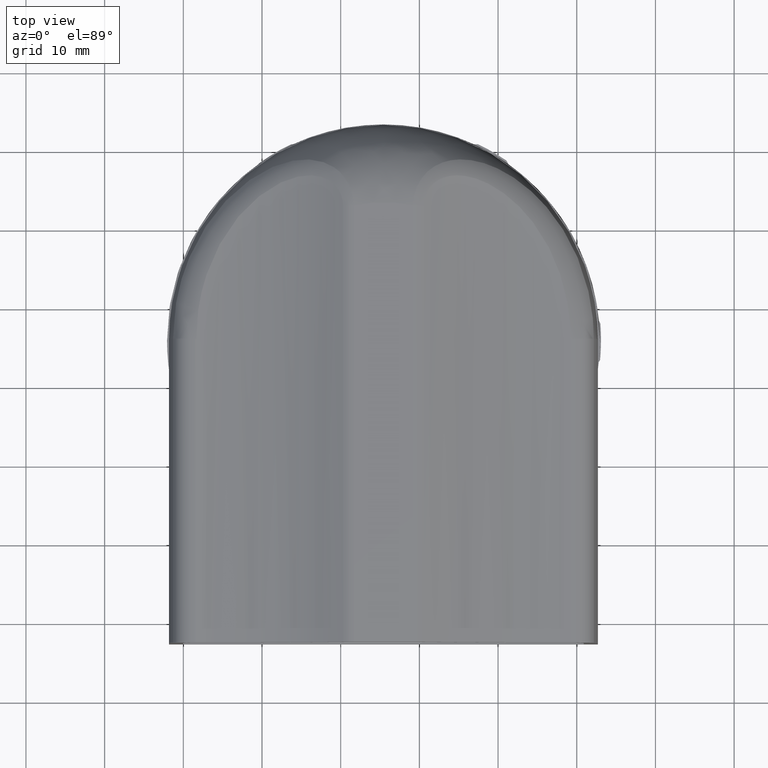
[diagram: clean part render]
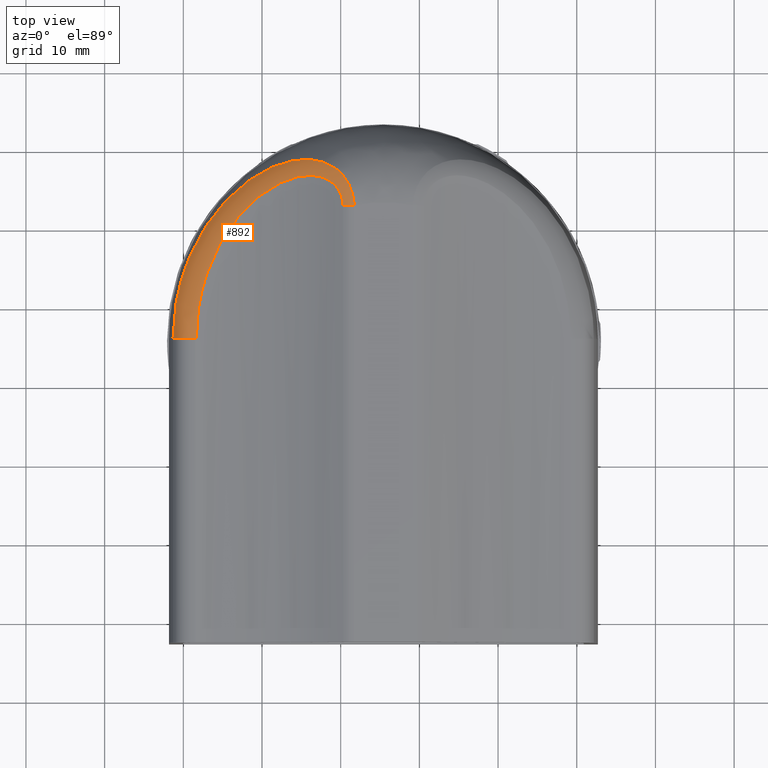
[diagram: same view with one face highlighted and labeled with its STEP entity id]
A machine part, top view. The second image highlights one B-rep face of the part: STEP entity #892.
In plain terms, the highlighted face is a freeform B-spline surface patch.
Its self-contained STEP definition (entity closure, byte-faithful):
#593 = VERTEX_POINT ( 'NONE', #2868 ) ;
#691 = VERTEX_POINT ( 'NONE', #3015 ) ;
#705 = VERTEX_POINT ( 'NONE', #2986 ) ;
#721 = VERTEX_POINT ( 'NONE', #3010 ) ;
#725 = VERTEX_POINT ( 'NONE', #3012 ) ;
#731 = VERTEX_POINT ( 'NONE', #3027 ) ;
#767 = VERTEX_POINT ( 'NONE', #3050 ) ;
#787 = VERTEX_POINT ( 'NONE', #3043 ) ;
#892 = ADVANCED_FACE ( 'NONE', ( #3349 ), #3810, .T. ) ;
#924 = EDGE_CURVE ( 'NONE', #705, #787, #13086, .T. ) ;
#1370 = EDGE_CURVE ( 'NONE', #593, #721, #13033, .T. ) ;
#1400 = EDGE_CURVE ( 'NONE', #767, #593, #13002, .T. ) ;
#1457 = EDGE_CURVE ( 'NONE', #725, #691, #16097, .T. ) ;
#1462 = EDGE_CURVE ( 'NONE', #721, #691, #13045, .T. ) ;
#1472 = EDGE_CURVE ( 'NONE', #705, #731, #16108, .T. ) ;
#1597 = EDGE_CURVE ( 'NONE', #787, #725, #13222, .T. ) ;
#1634 = EDGE_CURVE ( 'NONE', #731, #767, #15459, .T. ) ;
#2868 = CARTESIAN_POINT ( 'NONE',  ( -29.23953529182410400, 16.15123547839498400, 28.12183438687709000 ) ) ;
#2986 = CARTESIAN_POINT ( 'NONE',  ( -28.35295904820535300, 5.810299003322281700, 30.20632979842735500 ) ) ;
#3010 = CARTESIAN_POINT ( 'NONE',  ( -29.22727264966025700, 16.18029899237197400, 28.12201132710667300 ) ) ;
#3012 = CARTESIAN_POINT ( 'NONE',  ( -9.727194611496791800, 22.65582705142065500, 34.62921381726673100 ) ) ;
#3015 = CARTESIAN_POINT ( 'NONE',  ( -8.282468096514207900, 22.65582705142065800, 35.00000000000000000 ) ) ;
#3027 = CARTESIAN_POINT ( 'NONE',  ( -28.46143528489474800, 5.810299003322280800, 30.20829162220716000 ) ) ;
#3043 = CARTESIAN_POINT ( 'NONE',  ( -27.05212935873010200, 13.91955743176911900, 30.18280376786649900 ) ) ;
#3050 = CARTESIAN_POINT ( 'NONE',  ( -31.30824170542127800, 5.810299003322281700, 28.15470231743880100 ) ) ;
#3323 = CARTESIAN_POINT ( 'NONE',  ( -29.39337706568769800, 13.77714085523745300, 30.19839028044501100 ) ) ;
#3327 = CARTESIAN_POINT ( 'NONE',  ( -28.35295904820534600, 5.810299003322281700, 30.20632979842735500 ) ) ;
#3329 = CARTESIAN_POINT ( 'NONE',  ( -31.30824170542127800, 5.810299003322281700, 28.15470231743879700 ) ) ;
#3331 = CARTESIAN_POINT ( 'NONE',  ( -30.59916644373205200, 7.442756039070599300, 30.28760298797578800 ) ) ;
#3334 = CARTESIAN_POINT ( 'NONE',  ( -30.01992600630856600, 11.43114534023539300, 30.23957486358580500 ) ) ;
#3336 = CARTESIAN_POINT ( 'NONE',  ( -27.41159285443916700, 12.75342647384064800, 30.18447605157441400 ) ) ;
#3337 = CARTESIAN_POINT ( 'NONE',  ( -30.59916644411810400, 5.810299003322281700, 30.28760298803019400 ) ) ;
#3338 = CARTESIAN_POINT ( 'NONE',  ( -30.04486649187033400, 13.98119868934333200, 28.11945171576723400 ) ) ;
#3340 = CARTESIAN_POINT ( 'NONE',  ( -27.85103734155215000, 10.95715762637992300, 30.19145776357734700 ) ) ;
#3341 = CARTESIAN_POINT ( 'NONE',  ( -30.70128860734118700, 11.57075258302899600, 28.13168486891889200 ) ) ;
#3342 = CARTESIAN_POINT ( 'NONE',  ( -31.15552815425063900, 9.130728497097177200, 28.14661697231155900 ) ) ;
#3343 = CARTESIAN_POINT ( 'NONE',  ( -31.30824170539294500, 7.481801290422351000, 28.15470231752401300 ) ) ;
#3344 = CARTESIAN_POINT ( 'NONE',  ( -29.13957338254359200, 14.54285902856159800, 30.18474467702575100 ) ) ;
#3345 = CARTESIAN_POINT ( 'NONE',  ( -28.22652282134690100, 8.777192894941260100, 30.20110569504322100 ) ) ;
#3347 = CARTESIAN_POINT ( 'NONE',  ( -26.97253817918989700, 14.16306365037054400, 30.18267716741660000 ) ) ;
#3349 = FACE_OUTER_BOUND ( 'NONE', #13857, .T. ) ;
#3350 = CARTESIAN_POINT ( 'NONE',  ( -27.58162620142385900, 18.19573494287270800, 30.12976452216454200 ) ) ;
#3351 = CARTESIAN_POINT ( 'NONE',  ( -24.82261894295285000, 18.75197696650392800, 30.25148610940280100 ) ) ;
#3352 = CARTESIAN_POINT ( 'NONE',  ( -26.51331168260517800, 19.87400658318624000, 30.14637992788754100 ) ) ;
#3353 = CARTESIAN_POINT ( 'NONE',  ( -27.02349902421475400, 20.29123892027097800, 28.22459074098078300 ) ) ;
#3354 = CARTESIAN_POINT ( 'NONE',  ( -24.63178862589970900, 19.05896549456584700, 30.26376029437030400 ) ) ;
#3358 = CARTESIAN_POINT ( 'NONE',  ( -30.51205024930710200, 12.37851058001246500, 28.12640647028898000 ) ) ;
#3359 = CARTESIAN_POINT ( 'NONE',  ( -29.51197573634992800, 13.38858144515611100, 30.20543012557919500 ) ) ;
#3360 = CARTESIAN_POINT ( 'NONE',  ( -27.30899826457383000, 13.11059573242833500, 30.18355367827544500 ) ) ;
#3361 = CARTESIAN_POINT ( 'NONE',  ( -29.00418849619542500, 14.92091131294049200, 30.17812263846843700 ) ) ;
#3362 = CARTESIAN_POINT ( 'NONE',  ( -26.35097148399084700, 15.88340135282136400, 30.18620017484755300 ) ) ;
#3363 = CARTESIAN_POINT ( 'NONE',  ( -28.88290025559350500, 17.08457369658605200, 28.12354769896502700 ) ) ;
#3364 = CARTESIAN_POINT ( 'NONE',  ( -28.13906798291206000, 18.55297370023641100, 28.14381605303209000 ) ) ;
#3365 = CARTESIAN_POINT ( 'NONE',  ( -28.35295904785730800, 7.303856281307517400, 30.20632979841476000 ) ) ;
#3368 = CARTESIAN_POINT ( 'NONE',  ( -30.45402525409692300, 9.049593634966690600, 30.27361510757563700 ) ) ;
#3369 = CARTESIAN_POINT ( 'NONE',  ( -27.08958185434250200, 13.81495584521526300, 30.18265612863836000 ) ) ;
#3371 = CARTESIAN_POINT ( 'NONE',  ( -30.16917494382961000, 13.58140416227893400, 28.12087927310164700 ) ) ;
#3373 = CARTESIAN_POINT ( 'NONE',  ( -29.83950688652368300, 12.21747921859585200, 30.22622289487442200 ) ) ;
#3374 = CARTESIAN_POINT ( 'NONE',  ( -29.77889723415620100, 14.76959098856618300, 28.11806257830930300 ) ) ;
#3377 = CARTESIAN_POINT ( 'NONE',  ( -29.63696779708440900, 15.15921519018422400, 28.11809513987660800 ) ) ;
#3380 = CARTESIAN_POINT ( 'NONE',  ( -28.28733020004366600, 16.78094759717409100, 30.14754664370265800 ) ) ;
#3381 = CARTESIAN_POINT ( 'NONE',  ( -25.73867710604483600, 17.19574636795099900, 30.19929596523963900 ) ) ;
#3382 = CARTESIAN_POINT ( 'NONE',  ( -27.69466979187214800, 11.67878785128900200, 30.18804728463157300 ) ) ;
#3383 = CARTESIAN_POINT ( 'NONE',  ( -13.71796803144591500, 28.52193853196524400, 31.91142757313665600 ) ) ;
#3384 = CARTESIAN_POINT ( 'NONE',  ( -24.23432917599670900, 19.66409991809132400, 30.29277289697216700 ) ) ;
#3385 = CARTESIAN_POINT ( 'NONE',  ( -12.90106127321599400, 27.48452649035967000, 33.08027415076824000 ) ) ;
#3386 = CARTESIAN_POINT ( 'NONE',  ( -22.93632587691272900, 24.94023124620969900, 28.78463009558197100 ) ) ;
#3387 = CARTESIAN_POINT ( 'NONE',  ( -15.48187390969171800, 27.64058972798465400, 32.09139581369854700 ) ) ;
#3388 = CARTESIAN_POINT ( 'NONE',  ( -13.03961305878188500, 26.43319152780438200, 33.02221426786119500 ) ) ;
#3389 = CARTESIAN_POINT ( 'NONE',  ( -20.41794540129215800, 23.85758383705114500, 30.79571043383726800 ) ) ;
#3390 = CARTESIAN_POINT ( 'NONE',  ( -14.32230080690440100, 26.49906792966098800, 32.50855033247420800 ) ) ;
#3391 = CARTESIAN_POINT ( 'NONE',  ( -11.83816098491847900, 27.10163714734875400, 33.55466546962750100 ) ) ;
#3392 = CARTESIAN_POINT ( 'NONE',  ( -17.32448108277023700, 27.28286343513995500, 31.51241977604439300 ) ) ;
#3393 = CARTESIAN_POINT ( 'NONE',  ( -26.79099248778392800, 20.63396649322332300, 28.24358749694341200 ) ) ;
#3394 = CARTESIAN_POINT ( 'NONE',  ( -11.38039849758933300, 27.84863476665003600, 33.14426602469510600 ) ) ;
#3395 = CARTESIAN_POINT ( 'NONE',  ( -23.55147206288970800, 24.39515555772875300, 28.66955035499285700 ) ) ;
#3396 = CARTESIAN_POINT ( 'NONE',  ( -18.74176894948425300, 26.76200893849296800, 31.14219638752515000 ) ) ;
#3397 = CARTESIAN_POINT ( 'NONE',  ( -11.53111125738790400, 25.90144723387314900, 33.70160082282878000 ) ) ;
#3398 = CARTESIAN_POINT ( 'NONE',  ( -11.76239300381993400, 28.02880630292774100, 32.92941687076066200 ) ) ;
#3399 = CARTESIAN_POINT ( 'NONE',  ( -11.17312750744941500, 26.71717223159170700, 33.87231803453175200 ) ) ;
#3400 = CARTESIAN_POINT ( 'NONE',  ( -15.28683945367572900, 26.38148080896549900, 32.15936101675485800 ) ) ;
#3401 = CARTESIAN_POINT ( 'NONE',  ( -12.92337298186463600, 28.39807859070773000, 32.30892207585873900 ) ) ;
#3402 = CARTESIAN_POINT ( 'NONE',  ( -17.28772262461648900, 28.13928546641834700, 30.37972753138577500 ) ) ;
#3403 = CARTESIAN_POINT ( 'NONE',  ( -24.32500544901657200, 22.68027160746668300, 30.25482258445543600 ) ) ;
#3404 = CARTESIAN_POINT ( 'NONE',  ( -16.49921738421914000, 28.34966229909598200, 30.67987067899550300 ) ) ;
#3405 = CARTESIAN_POINT ( 'NONE',  ( -19.42732777019043100, 26.43669707771626800, 30.98596107635669800 ) ) ;
#3406 = CARTESIAN_POINT ( 'NONE',  ( -22.93389974377384300, 21.39311554226034300, 30.41605541456488700 ) ) ;
#3407 = CARTESIAN_POINT ( 'NONE',  ( -16.24473599324286600, 26.16299241478996200, 31.83789168412684500 ) ) ;
#3408 = CARTESIAN_POINT ( 'NONE',  ( -15.31510720162093300, 28.51499805532643400, 31.17740877272997200 ) ) ;
#3409 = CARTESIAN_POINT ( 'NONE',  ( -13.35518632741572800, 26.47567331192403700, 32.89045443839536600 ) ) ;
#3410 = CARTESIAN_POINT ( 'NONE',  ( -25.27126616628063600, 22.61761172205936200, 28.40417993733138900 ) ) ;
#3411 = CARTESIAN_POINT ( 'NONE',  ( -12.53207102009498700, 28.30231164112188900, 32.51284676467654600 ) ) ;
#3412 = CARTESIAN_POINT ( 'NONE',  ( -21.40918121842214800, 25.24139738059001200, 30.60865000955491400 ) ) ;
#3413 = CARTESIAN_POINT ( 'NONE',  ( -20.76057143215319600, 25.67834725495140100, 30.71882861330693600 ) ) ;
#3414 = CARTESIAN_POINT ( 'NONE',  ( -12.41943898594803700, 26.28686351645429300, 33.29136856024953800 ) ) ;
#3415 = CARTESIAN_POINT ( 'NONE',  ( -18.80134014735208900, 27.57969082913627500, 29.85626843750595000 ) ) ;
#3416 = CARTESIAN_POINT ( 'NONE',  ( -18.11114053186714700, 25.38182881315709900, 31.30574577010438700 ) ) ;
#3417 = CARTESIAN_POINT ( 'NONE',  ( -12.11191789948362500, 26.18148258825010500, 33.43018690592795400 ) ) ;
#3418 = CARTESIAN_POINT ( 'NONE',  ( -14.37302534543599300, 27.68394949200300900, 32.48886028250031900 ) ) ;
#3419 = CARTESIAN_POINT ( 'NONE',  ( -25.59069032951809700, 21.16702023093487400, 30.17744157422235700 ) ) ;
#3420 = CARTESIAN_POINT ( 'NONE',  ( -24.02702491774480400, 19.96314402934457300, 30.30957468574954600 ) ) ;
#3421 = CARTESIAN_POINT ( 'NONE',  ( -19.85718581624183800, 24.28761448590086000, 30.90468444905274800 ) ) ;
#3422 = CARTESIAN_POINT ( 'NONE',  ( -18.70479975253631700, 25.04833796568971800, 31.15963246881503300 ) ) ;
#3423 = CARTESIAN_POINT ( 'NONE',  ( -14.91867720372991400, 28.54565394212199400, 31.35158867042006700 ) ) ;
#3424 = CARTESIAN_POINT ( 'NONE',  ( -24.71897455896680300, 23.23389393858084200, 28.47929465727948900 ) ) ;
#3425 = CARTESIAN_POINT ( 'NONE',  ( -13.99640406239791300, 26.50886994603814300, 32.63362527478177100 ) ) ;
#3426 = CARTESIAN_POINT ( 'NONE',  ( -13.99874569714586100, 27.66422210993474800, 32.63217103227933800 ) ) ;
#3427 = CARTESIAN_POINT ( 'NONE',  ( -13.26297537450887600, 27.56402384659218200, 32.92790083672689100 ) ) ;
#3428 = CARTESIAN_POINT ( 'NONE',  ( -26.30646027488285200, 21.30908529242952600, 28.28849030294004400 ) ) ;
#3429 = CARTESIAN_POINT ( 'NONE',  ( -16.58846513487111100, 27.48024668028753600, 31.72761367538790000 ) ) ;
#3430 = CARTESIAN_POINT ( 'NONE',  ( -24.84875828145058900, 22.09487060581643500, 30.21699207264332500 ) ) ;
#3431 = CARTESIAN_POINT ( 'NONE',  ( -12.19045729454496700, 27.25417326858395500, 33.39280420753437500 ) ) ;
#3432 = CARTESIAN_POINT ( 'NONE',  ( -22.63645973817654400, 24.29320369617263600, 30.43029681150017000 ) ) ;
#3433 = CARTESIAN_POINT ( 'NONE',  ( -25.83107001544776400, 20.84855160895416400, 30.16717214374855500 ) ) ;
#3434 = CARTESIAN_POINT ( 'NONE',  ( -21.63754758523646900, 25.94994317167118000, 29.06688673892943700 ) ) ;
#3435 = CARTESIAN_POINT ( 'NONE',  ( -19.53221369437773800, 27.23026539664997600, 29.63012887950482000 ) ) ;
#3436 = CARTESIAN_POINT ( 'NONE',  ( -15.11323513779122700, 27.67210798439313300, 32.21898732857218300 ) ) ;
#3437 = CARTESIAN_POINT ( 'NONE',  ( -26.05361050295995900, 21.64247682890392400, 28.31449443143973000 ) ) ;
#3438 = CARTESIAN_POINT ( 'NONE',  ( -23.38597326123116100, 20.83866247529818900, 30.36752228823666400 ) ) ;
#3439 = CARTESIAN_POINT ( 'NONE',  ( -21.97944173641458900, 22.44160741233646000, 30.53898343329101200 ) ) ;
#3440 = CARTESIAN_POINT ( 'NONE',  ( -23.21808728227367500, 23.77943919696106100, 30.36170807091841100 ) ) ;
#3441 = CARTESIAN_POINT ( 'NONE',  ( -21.47710876049269800, 22.93571013728743000, 30.61333876056459500 ) ) ;
#3442 = CARTESIAN_POINT ( 'NONE',  ( -26.29207398512119900, 20.20247870913441800, 30.15165172349297200 ) ) ;
#3443 = CARTESIAN_POINT ( 'NONE',  ( -16.88343250106406800, 25.93889781776377400, 31.64396318020172000 ) ) ;
#3444 = CARTESIAN_POINT ( 'NONE',  ( -14.12156241065095100, 28.54937359541861900, 31.71784908380385900 ) ) ;
#3445 = CARTESIAN_POINT ( 'NONE',  ( -20.94907614155838300, 26.41699189476258200, 29.23554582344543800 ) ) ;
#3446 = CARTESIAN_POINT ( 'NONE',  ( -14.96634387094750300, 26.43529227785254000, 32.27190214014555600 ) ) ;
#3448 = CARTESIAN_POINT ( 'NONE',  ( -10.27126083617396400, 25.92257349317643600, 34.33020028649694000 ) ) ;
#3451 = CARTESIAN_POINT ( 'NONE',  ( -8.418264402466878200, 23.71958936061236800, 34.94641565771174600 ) ) ;
#3453 = CARTESIAN_POINT ( 'NONE',  ( -10.22923582056749400, 24.59737012370281700, 34.35832100891844500 ) ) ;
#3454 = CARTESIAN_POINT ( 'NONE',  ( -10.31489884869202100, 27.12532971823032600, 33.77044735636327700 ) ) ;
#3455 = CARTESIAN_POINT ( 'NONE',  ( -9.324087991451596800, 24.23439266949380100, 34.84641977292488200 ) ) ;
#3457 = CARTESIAN_POINT ( 'NONE',  ( -9.739542200454364400, 23.03385566249695400, 34.62241879636384600 ) ) ;
#3458 = CARTESIAN_POINT ( 'NONE',  ( -10.51763603155096600, 25.03914048488171300, 34.20686338282931900 ) ) ;
#3459 = CARTESIAN_POINT ( 'NONE',  ( -10.65756661270049000, 27.39651498738286200, 33.56433335149299800 ) ) ;
#3460 = CARTESIAN_POINT ( 'NONE',  ( -10.74457166164966000, 25.29215649286807700, 34.08990584007433700 ) ) ;
#3461 = CARTESIAN_POINT ( 'NONE',  ( -9.675508609248176100, 25.04590790181557100, 34.65119116071522100 ) ) ;
#3462 = CARTESIAN_POINT ( 'NONE',  ( -11.25630492815244900, 25.72746860808585700, 33.83477521473631800 ) ) ;
#3463 = CARTESIAN_POINT ( 'NONE',  ( -10.85824064950164200, 26.48622604483920600, 34.02889448084025000 ) ) ;
#3464 = CARTESIAN_POINT ( 'NONE',  ( -9.200187923655274600, 23.79973488330374900, 34.91629257097400800 ) ) ;
#3465 = CARTESIAN_POINT ( 'NONE',  ( -10.01003018604095600, 25.60065701949238800, 34.46928655302975400 ) ) ;
#3467 = CARTESIAN_POINT ( 'NONE',  ( -9.398940626318864800, 24.44413337825643500, 34.80439501832947300 ) ) ;
#3468 = CARTESIAN_POINT ( 'NONE',  ( -9.829207930029642900, 23.59120931270130600, 34.57332018861328700 ) ) ;
#3473 = CARTESIAN_POINT ( 'NONE',  ( -8.621534179728637800, 24.49083084065653900, 34.82814599747126000 ) ) ;
#3475 = CARTESIAN_POINT ( 'NONE',  ( -9.930724915285644300, 23.94401557610331800, 34.51817550256392800 ) ) ;
#3476 = CARTESIAN_POINT ( 'NONE',  ( -9.673375257684544000, 26.46454947422836700, 34.16531303608397300 ) ) ;
#3483 = CARTESIAN_POINT ( 'NONE',  ( -8.706792822886717100, 24.73563363362527300, 34.77563181110589600 ) ) ;
#3484 = CARTESIAN_POINT ( 'NONE',  ( -8.903826925887340600, 25.20866819953653600, 34.65232795878215200 ) ) ;
#3485 = CARTESIAN_POINT ( 'NONE',  ( -9.727194611496790000, 22.65582705142065800, 34.62921381726672400 ) ) ;
#3486 = CARTESIAN_POINT ( 'NONE',  ( -9.387092377196303500, 26.08757628699108700, 34.34632822140313400 ) ) ;
#3487 = CARTESIAN_POINT ( 'NONE',  ( -9.016858172583184200, 25.43894042092253800, 34.58073919668908800 ) ) ;
#3488 = CARTESIAN_POINT ( 'NONE',  ( -10.14222836692289500, 24.43956857928063500, 34.40457594389071300 ) ) ;
#3489 = CARTESIAN_POINT ( 'NONE',  ( -9.081276758243927100, 23.11667870094584000, 34.98378338619197300 ) ) ;
#3491 = CARTESIAN_POINT ( 'NONE',  ( -8.299579803523593900, 22.92336915913571400, 35.00000000000000000 ) ) ;
#3492 = CARTESIAN_POINT ( 'NONE',  ( -8.477399898626673600, 23.98401721814516200, 34.91349343052761600 ) ) ;
#3495 = CARTESIAN_POINT ( 'NONE',  ( -9.052412121673329500, 22.65582705142065800, 35.00000000000000000 ) ) ;
#3496 = CARTESIAN_POINT ( 'NONE',  ( -9.060398505306585200, 22.88694350224939500, 34.99561156257443200 ) ) ;
#3497 = CARTESIAN_POINT ( 'NONE',  ( -8.329632418224578700, 23.18973874025743200, 34.98948334524472900 ) ) ;
#3500 = CARTESIAN_POINT ( 'NONE',  ( -9.993466145897191000, 24.11358323183532400, 34.48424503374879900 ) ) ;
#3501 = CARTESIAN_POINT ( 'NONE',  ( -9.727194610454130700, 22.84574331554380700, 34.62921381783965600 ) ) ;
#3504 = CARTESIAN_POINT ( 'NONE',  ( -8.282468096514206100, 22.65582705142065800, 35.00000000000000000 ) ) ;
#3505 = CARTESIAN_POINT ( 'NONE',  ( -9.150912606815300200, 23.57257664292721700, 34.94426963074425200 ) ) ;
#3506 = CARTESIAN_POINT ( 'NONE',  ( -9.574043120321119800, 24.84896087667165800, 34.70711013137683000 ) ) ;
#3507 = CARTESIAN_POINT ( 'NONE',  ( -9.790327414165945500, 23.40626545472317200, 34.59459189933615200 ) ) ;
#3810 =( BOUNDED_SURFACE ( )  B_SPLINE_SURFACE ( 3, 2, ( 
 ( #3327, #3337, #3329 ),
 ( #3365, #3331, #3343 ),
 ( #3345, #3368, #3342 ),
 ( #3340, #3334, #3341 ),
 ( #3382, #3373, #3358 ),
 ( #3336, #3359, #3371 ),
 ( #3360, #3323, #3338 ),
 ( #3369, #3344, #3374 ),
 ( #3347, #3361, #3377 ),
 ( #3362, #3380, #3363 ),
 ( #3381, #3350, #3364 ),
 ( #3351, #3352, #3353 ),
 ( #3354, #3442, #3393 ),
 ( #3384, #3433, #3428 ),
 ( #3420, #3419, #3437 ),
 ( #3438, #3430, #3410 ),
 ( #3406, #3403, #3424 ),
 ( #3439, #3440, #3395 ),
 ( #3441, #3432, #3386 ),
 ( #3389, #3412, #3434 ),
 ( #3421, #3413, #3445 ),
 ( #3422, #3405, #3435 ),
 ( #3416, #3396, #3415 ),
 ( #3443, #3392, #3402 ),
 ( #3407, #3429, #3404 ),
 ( #3400, #3387, #3408 ),
 ( #3446, #3436, #3423 ),
 ( #3390, #3418, #3444 ),
 ( #3425, #3426, #3383 ),
 ( #3409, #3427, #3401 ),
 ( #3388, #3385, #3411 ),
 ( #3414, #3431, #3398 ),
 ( #3417, #3391, #3394 ),
 ( #3397, #3399, #3459 ),
 ( #3462, #3463, #3454 ),
 ( #3460, #3448, #3476 ),
 ( #3458, #3465, #3486 ),
 ( #3453, #3461, #3487 ),
 ( #3488, #3506, #3484 ),
 ( #3500, #3467, #3483 ),
 ( #3475, #3455, #3473 ),
 ( #3468, #3464, #3492 ),
 ( #3507, #3505, #3451 ),
 ( #3457, #3489, #3497 ),
 ( #3501, #3496, #3491 ),
 ( #3485, #3495, #3504 ) ),
 .UNSPECIFIED., .F., .F., .F. ) 
 B_SPLINE_SURFACE_WITH_KNOTS ( ( 4, 2, 2, 2, 2, 2, 2, 2, 2, 2, 2, 2, 2, 2, 2, 2, 2, 2, 2, 2, 2, 2, 4 ),
 ( 3, 3 ),
 ( -8.673617379884035500E-019, 0.004432207092003787000, 0.006648310638005680600, 0.007756362411006627300, 0.008864414184007574100, 0.01329662127601136100, 0.01440467304901230800, 0.01551272482201325500, 0.01772882836801514800, 0.01994493191401704200, 0.02216103546001893500, 0.02437713900602082900, 0.02659324255202272200, 0.02770129432502366900, 0.02880934609802461600, 0.02991739787102556300, 0.03102544964402650900, 0.03213350141702745600, 0.03324155319002840300, 0.03379557907652887300, 0.03434960496302935000, 0.03490363084952982600, 0.03545765673603029600 ),
 ( 0.0000000000000000000, 1.000000000000000000 ),
 .UNSPECIFIED. ) 
 GEOMETRIC_REPRESENTATION_ITEM ( )  RATIONAL_B_SPLINE_SURFACE ( (
 ( 1.000000000000000000, 0.8002973248738952700, 1.000000000000000000),
 ( 1.000000000000000000, 0.8003048694465303400, 1.000000000000000000),
 ( 1.000000000000000000, 0.8011790256996445000, 1.000000000000000000),
 ( 1.000000000000000000, 0.8038991946801279400, 1.000000000000000000),
 ( 1.000000000000000000, 0.8050425425954381700, 1.000000000000000000),
 ( 1.000000000000000000, 0.8071555957743835600, 1.000000000000000000),
 ( 1.000000000000000000, 0.8079275764793200100, 1.000000000000000000),
 ( 1.000000000000000000, 0.8095959255717993800, 1.000000000000000000),
 ( 1.000000000000000000, 0.8104939373481867500, 1.000000000000000000),
 ( 1.000000000000000000, 0.8153162684869483800, 1.000000000000000000),
 ( 1.000000000000000000, 0.8202245830476829800, 1.000000000000000000),
 ( 1.000000000000000000, 0.8280085253407812900, 1.000000000000000000),
 ( 1.000000000000000000, 0.8296485712422500000, 1.000000000000000000),
 ( 1.000000000000000000, 0.8331072654607915000, 1.000000000000000000),
 ( 1.000000000000000000, 0.8349319699159953900, 1.000000000000000000),
 ( 1.000000000000000000, 0.8406437656888334800, 1.000000000000000000),
 ( 1.000000000000000000, 0.8447611666637234700, 1.000000000000000000),
 ( 1.000000000000000000, 0.8536516516316831100, 1.000000000000000000),
 ( 1.000000000000000000, 0.8584243945240135300, 1.000000000000000000),
 ( 1.000000000000000000, 0.8686754650322090500, 1.000000000000000000),
 ( 1.000000000000000000, 0.8741939581198223700, 1.000000000000000000),
 ( 1.000000000000000000, 0.8856798511910768400, 1.000000000000000000),
 ( 1.000000000000000000, 0.8916659278940856100, 1.000000000000000000),
 ( 1.000000000000000000, 0.9041103972118410500, 1.000000000000000000),
 ( 1.000000000000000000, 0.9106162592099341600, 1.000000000000000000),
 ( 1.000000000000000000, 0.9203395701800805000, 1.000000000000000000),
 ( 1.000000000000000000, 0.9235869673617495000, 1.000000000000000000),
 ( 1.000000000000000000, 0.9300848462042040600, 1.000000000000000000),
 ( 1.000000000000000000, 0.9333587739301570900, 1.000000000000000000),
 ( 1.000000000000000000, 0.9397541965247003800, 1.000000000000000000),
 ( 1.000000000000000000, 0.9428787472093112000, 1.000000000000000000),
 ( 1.000000000000000000, 0.9489513657002191000, 1.000000000000000000),
 ( 1.000000000000000000, 0.9519275259061000800, 1.000000000000000000),
 ( 1.000000000000000000, 0.9574429791939326200, 1.000000000000000000),
 ( 1.000000000000000000, 0.9599998663673995300, 1.000000000000000000),
 ( 1.000000000000000000, 0.9645715317848825300, 1.000000000000000000),
 ( 1.000000000000000000, 0.9664990010258426300, 1.000000000000000000),
 ( 1.000000000000000000, 0.9686576070500533300, 1.000000000000000000),
 ( 1.000000000000000000, 0.9692485269839221700, 1.000000000000000000),
 ( 1.000000000000000000, 0.9700957809862893500, 1.000000000000000000),
 ( 1.000000000000000000, 0.9703599404420738500, 1.000000000000000000),
 ( 1.000000000000000000, 0.9705269343175727500, 1.000000000000000000),
 ( 1.000000000000000000, 0.9704252739603664900, 1.000000000000000000),
 ( 1.000000000000000000, 0.9698186381263469400, 1.000000000000000000),
 ( 1.000000000000000000, 0.9693172149953759300, 1.000000000000000000),
 ( 1.000000000000000000, 0.9686084363032296800, 1.000000000000000000) ) ) 
 REPRESENTATION_ITEM ( '' )  SURFACE ( )  );
#4675 = CARTESIAN_POINT ( 'NONE',  ( -27.05212935873010200, 13.91955743176911900, 30.18280376786649900 ) ) ;
#4680 = CARTESIAN_POINT ( 'NONE',  ( -28.22652282134690100, 8.777192894941260100, 30.20110569504322100 ) ) ;
#4707 = CARTESIAN_POINT ( 'NONE',  ( -28.35295904820535300, 5.810299003322281700, 30.20632979842735500 ) ) ;
#4709 = CARTESIAN_POINT ( 'NONE',  ( -27.85103734155215000, 10.95715762637992300, 30.19145776357734700 ) ) ;
#4710 = CARTESIAN_POINT ( 'NONE',  ( -27.30899826457383000, 13.11059573242833500, 30.18355367827544500 ) ) ;
#4711 = CARTESIAN_POINT ( 'NONE',  ( -28.35295904785730800, 7.303856281307517400, 30.20632979841476000 ) ) ;
#4712 = CARTESIAN_POINT ( 'NONE',  ( -27.15161985971642600, 13.61580439425412000, 30.18290990267991700 ) ) ;
#4715 = CARTESIAN_POINT ( 'NONE',  ( -27.69466979187214800, 11.67878785128900200, 30.18804728463157300 ) ) ;
#4722 = CARTESIAN_POINT ( 'NONE',  ( -27.41159285443916700, 12.75342647384064800, 30.18447605157441400 ) ) ;
#4724 = CARTESIAN_POINT ( 'NONE',  ( -27.10256467943516200, 13.76806413433922300, 30.18280360551503700 ) ) ;
#7052 = CARTESIAN_POINT ( 'NONE',  ( -29.23953529182410400, 16.15123547839498400, 28.12183438687709000 ) ) ;
#7060 = CARTESIAN_POINT ( 'NONE',  ( -29.22727264966025700, 16.18029899237197400, 28.12201132710667300 ) ) ;
#7066 = CARTESIAN_POINT ( 'NONE',  ( -29.23132495902367000, 16.17060900183872700, 28.12197232681427600 ) ) ;
#7072 = CARTESIAN_POINT ( 'NONE',  ( -29.23541344341347100, 16.16092157759927900, 28.12191291047932800 ) ) ;
#7121 = CARTESIAN_POINT ( 'NONE',  ( -31.28351834951956100, 7.272325675323623200, 28.15302540682637300 ) ) ;
#7122 = CARTESIAN_POINT ( 'NONE',  ( -30.21364924581437700, 13.42106686011113200, 28.12166862695236700 ) ) ;
#7123 = CARTESIAN_POINT ( 'NONE',  ( -29.23953529182410400, 16.15123547839498400, 28.12183438687709000 ) ) ;
#7124 = CARTESIAN_POINT ( 'NONE',  ( -29.55096617244381100, 15.37922875984801300, 28.11873050453012700 ) ) ;
#7125 = CARTESIAN_POINT ( 'NONE',  ( -30.97580599888602700, 10.05092957325983600, 28.14075999351118500 ) ) ;
#7126 = CARTESIAN_POINT ( 'NONE',  ( -30.54608154793898900, 12.20015542851052900, 28.12794622248624400 ) ) ;
#7127 = CARTESIAN_POINT ( 'NONE',  ( -30.20154000141814900, 13.46191604531105500, 28.12149948509132400 ) ) ;
#7130 = CARTESIAN_POINT ( 'NONE',  ( -31.16853729314679100, 8.597298089025226600, 28.14799395916832500 ) ) ;
#7135 = CARTESIAN_POINT ( 'NONE',  ( -31.30824175068093500, 6.489195161885969100, 28.15470218129758000 ) ) ;
#7136 = CARTESIAN_POINT ( 'NONE',  ( -31.11711880545799900, 9.063928755232524300, 28.14589740126477600 ) ) ;
#7138 = CARTESIAN_POINT ( 'NONE',  ( -30.83617463618811500, 10.84597762921768900, 28.13611822164130100 ) ) ;
#7139 = CARTESIAN_POINT ( 'NONE',  ( -30.33613539464540300, 12.99492039303095800, 28.12365222818538500 ) ) ;
#7142 = CARTESIAN_POINT ( 'NONE',  ( -30.22112619363293400, 13.39568898806792600, 28.12177698174897600 ) ) ;
#7143 = CARTESIAN_POINT ( 'NONE',  ( -30.19991937774458200, 13.46738029434743400, 28.12147702173930600 ) ) ;
#7145 = CARTESIAN_POINT ( 'NONE',  ( -30.24645328072096000, 13.30939051153010800, 28.12215163404568200 ) ) ;
#7146 = CARTESIAN_POINT ( 'NONE',  ( -30.20635857337577300, 13.44567846060200200, 28.12156633363063900 ) ) ;
#7147 = CARTESIAN_POINT ( 'NONE',  ( -29.62480968440147700, 15.18480641486844700, 28.11842992209437100 ) ) ;
#7148 = CARTESIAN_POINT ( 'NONE',  ( -29.44136202108092000, 15.65837892563938800, 28.11952898210945800 ) ) ;
#7149 = CARTESIAN_POINT ( 'NONE',  ( -29.32034450185781100, 15.95716591001844800, 28.12078414403267200 ) ) ;
#7152 = CARTESIAN_POINT ( 'NONE',  ( -30.26800915684983600, 13.23489417211211200, 28.12249445882598700 ) ) ;
#7153 = CARTESIAN_POINT ( 'NONE',  ( -30.66602419380252100, 11.70234784534349300, 28.13086878531584400 ) ) ;
#7155 = CARTESIAN_POINT ( 'NONE',  ( -30.82017088154740100, 10.92907253284786700, 28.13560820455508300 ) ) ;
#7158 = CARTESIAN_POINT ( 'NONE',  ( -30.79882660868663500, 11.03859684671084700, 28.13493421753974400 ) ) ;
#7159 = CARTESIAN_POINT ( 'NONE',  ( -30.15934846778467500, 13.60272930020704700, 28.12094364362560800 ) ) ;
#7160 = CARTESIAN_POINT ( 'NONE',  ( -30.17742121585775500, 13.54287707826857600, 28.12117265606617500 ) ) ;
#7161 = CARTESIAN_POINT ( 'NONE',  ( -31.01434446076697100, 9.799705878230049900, 28.14212303758642300 ) ) ;
#7162 = CARTESIAN_POINT ( 'NONE',  ( -30.81372825342008800, 10.96235425533719400, 28.13540337733437700 ) ) ;
#7163 = CARTESIAN_POINT ( 'NONE',  ( -29.35090801735811200, 15.88258130453736800, 28.12042972565806000 ) ) ;
#7164 = CARTESIAN_POINT ( 'NONE',  ( -30.91077698425409900, 10.43643638709417800, 28.13855797607173400 ) ) ;
#7165 = CARTESIAN_POINT ( 'NONE',  ( -29.99612092338978200, 14.13650578725729700, 28.11901286183762800 ) ) ;
#7166 = CARTESIAN_POINT ( 'NONE',  ( -29.26265229327915300, 16.09626960769693900, 28.12152177973454700 ) ) ;
#7167 = CARTESIAN_POINT ( 'NONE',  ( -29.33293135233531100, 15.92652027018805500, 28.12063521744082100 ) ) ;
#7169 = CARTESIAN_POINT ( 'NONE',  ( -31.30824170542127800, 5.810299003322281700, 28.15470231743880100 ) ) ;
#7170 = CARTESIAN_POINT ( 'NONE',  ( -30.38618571993434300, 12.81295984235826400, 28.12459646894700100 ) ) ;
#7171 = CARTESIAN_POINT ( 'NONE',  ( -29.28576011783454900, 16.04088759362734300, 28.12121270395760300 ) ) ;
#7172 = CARTESIAN_POINT ( 'NONE',  ( -29.84702154915114400, 14.57614962767720200, 28.11822344762111200 ) ) ;
#7173 = CARTESIAN_POINT ( 'NONE',  ( -30.87645665893871800, 10.63135680095646600, 28.13741760436134200 ) ) ;
#7174 = CARTESIAN_POINT ( 'NONE',  ( -30.80985996709249300, 10.98223739458630300, 28.13528085022182500 ) ) ;
#7175 = CARTESIAN_POINT ( 'NONE',  ( -29.39593457031128000, 15.77209100961967200, 28.11993409793297300 ) ) ;
#7176 = CARTESIAN_POINT ( 'NONE',  ( -30.79145738534578000, 11.07581063598049200, 28.13470581927586900 ) ) ;
#7831 = DIRECTION ( 'NONE',  ( 0.0000000000000000000, 1.000000000000000000, 0.0000000000000000000 ) ) ;
#7833 = DIRECTION ( 'NONE',  ( 0.0000000000000000000, 0.0000000000000000000, 1.000000000000000000 ) ) ;
#7845 = CARTESIAN_POINT ( 'NONE',  ( -29.22727264966025700, 16.18029899237197400, 28.12201132710667300 ) ) ;
#7852 = CARTESIAN_POINT ( 'NONE',  ( -8.282468096514206100, 22.65582705142065800, 32.00000000000000000 ) ) ;
#7855 = CARTESIAN_POINT ( 'NONE',  ( -28.95762189614611500, 16.81802383982458700, 28.12599738944645700 ) ) ;
#7872 = CARTESIAN_POINT ( 'NONE',  ( -23.42562811463018200, 24.48923351237623100, 28.69719453986329300 ) ) ;
#7873 = CARTESIAN_POINT ( 'NONE',  ( -28.24457332607228500, 18.24148810784023000, 28.15025251165607400 ) ) ;
#7874 = CARTESIAN_POINT ( 'NONE',  ( -23.60738070234314600, 24.32166604928600500, 28.66451663732860700 ) ) ;
#7875 = CARTESIAN_POINT ( 'NONE',  ( -23.58103818865559000, 24.34606140245191600, 28.66922586863738300 ) ) ;
#7876 = CARTESIAN_POINT ( 'NONE',  ( -28.13536933498968300, 18.44516233904447200, 28.15506564838563000 ) ) ;
#7877 = CARTESIAN_POINT ( 'NONE',  ( -14.78399726579498900, 28.54211002534020400, 31.41463003921084200 ) ) ;
#7879 = CARTESIAN_POINT ( 'NONE',  ( -26.91741964793118700, 20.44282123954794600, 28.23384264635443200 ) ) ;
#7880 = CARTESIAN_POINT ( 'NONE',  ( -24.29319091919485300, 23.66717560792738300, 28.54660737370439700 ) ) ;
#7881 = CARTESIAN_POINT ( 'NONE',  ( -14.75011709724789300, 28.54326970241651300, 31.42991863373064000 ) ) ;
#7882 = CARTESIAN_POINT ( 'NONE',  ( -23.64690032149132300, 24.28497162576685000, 28.65747556082386500 ) ) ;
#7883 = CARTESIAN_POINT ( 'NONE',  ( -21.36314042036455500, 26.13183821798204700, 29.13548428370625100 ) ) ;
#7884 = CARTESIAN_POINT ( 'NONE',  ( -19.74859953763763100, 27.09601072650210100, 29.57311446259091900 ) ) ;
#7886 = CARTESIAN_POINT ( 'NONE',  ( -19.54032241766048700, 27.20284865451280600, 29.63522293260936600 ) ) ;
#7887 = CARTESIAN_POINT ( 'NONE',  ( -21.88243918607101400, 25.76488836453985000, 29.01244268834112100 ) ) ;
#7888 = CARTESIAN_POINT ( 'NONE',  ( -19.46033814352753000, 27.24298444222176500, 29.65937087626876300 ) ) ;
#7889 = CARTESIAN_POINT ( 'NONE',  ( -28.22473671712353400, 18.27857756014472200, 28.15111930603901800 ) ) ;
#7890 = CARTESIAN_POINT ( 'NONE',  ( -20.32794334347820400, 26.77620745185967300, 29.40776352212432300 ) ) ;
#7891 = CARTESIAN_POINT ( 'NONE',  ( -27.88460376195789400, 18.89995876462687700, 28.16717174345711100 ) ) ;
#7893 = CARTESIAN_POINT ( 'NONE',  ( -28.68242518664042300, 17.39737133299962900, 28.13312755497715800 ) ) ;
#7894 = CARTESIAN_POINT ( 'NONE',  ( -28.25285832137549500, 18.22594706989824700, 28.14989455800005700 ) ) ;
#7896 = CARTESIAN_POINT ( 'NONE',  ( -28.32823336696403500, 18.08375038407926600, 28.14670501360550900 ) ) ;
#7897 = CARTESIAN_POINT ( 'NONE',  ( -25.97113707943603700, 21.75851430273382900, 28.32233613220831700 ) ) ;
#7898 = CARTESIAN_POINT ( 'NONE',  ( -23.04279000967855100, 24.83295181474959500, 28.76829511095488100 ) ) ;
#7899 = CARTESIAN_POINT ( 'NONE',  ( -23.81827872406219300, 24.12341977427055900, 28.62753462853904600 ) ) ;
#7900 = CARTESIAN_POINT ( 'NONE',  ( -20.58646555242398400, 26.62257516482233300, 29.33751354794572200 ) ) ;
#7901 = CARTESIAN_POINT ( 'NONE',  ( -28.37873043211531500, 17.98680802144748000, 28.14470194162341000 ) ) ;
#7902 = CARTESIAN_POINT ( 'NONE',  ( -19.42835445098927100, 27.25896234360558500, 29.66905078177068600 ) ) ;
#7903 = CARTESIAN_POINT ( 'NONE',  ( -24.71642920683672900, 23.22661563471361000, 28.48250433187260500 ) ) ;
#7904 = CARTESIAN_POINT ( 'NONE',  ( -26.94884441495036500, 20.39631048878954200, 28.23128160066069700 ) ) ;
#7905 = CARTESIAN_POINT ( 'NONE',  ( -26.88020090173911200, 20.49765347305011100, 28.23690728747958500 ) ) ;
#7906 = CARTESIAN_POINT ( 'NONE',  ( -22.65678305515124400, 25.15372028074975900, 28.84656755422914600 ) ) ;
#7907 = CARTESIAN_POINT ( 'NONE',  ( -19.94149258935263100, 26.99187337788563200, 29.51730361372084800 ) ) ;
#7908 = CARTESIAN_POINT ( 'NONE',  ( -19.31890562331858200, 27.31297510034758600, 29.70239526113915200 ) ) ;
#7911 = CARTESIAN_POINT ( 'NONE',  ( -23.56870206355370100, 24.35746115115445300, 28.67143732714150800 ) ) ;
#7912 = CARTESIAN_POINT ( 'NONE',  ( -19.35685295398843300, 27.29439297772100700, 29.69078680546830300 ) ) ;
#7913 = CARTESIAN_POINT ( 'NONE',  ( -28.27795657903409000, 18.17876188240726500, 28.14881904995534300 ) ) ;
#7914 = CARTESIAN_POINT ( 'NONE',  ( -26.92773501741517700, 20.42757625579287500, 28.23299941361013100 ) ) ;
#7915 = CARTESIAN_POINT ( 'NONE',  ( -26.47912825739772600, 21.06898526266500600, 28.27251331627243800 ) ) ;
#7916 = CARTESIAN_POINT ( 'NONE',  ( -18.06735618922592600, 27.91925258539083300, 30.08742081561562600 ) ) ;
#7917 = CARTESIAN_POINT ( 'NONE',  ( -16.87683210397695200, 28.29211652596087500, 30.52244389814033500 ) ) ;
#7918 = CARTESIAN_POINT ( 'NONE',  ( -23.73915092744388000, 24.19864042675164100, 28.64120593875128400 ) ) ;
#7919 = CARTESIAN_POINT ( 'NONE',  ( -26.80562174586277600, 20.60687048950318400, 28.24313282835489900 ) ) ;
#7920 = CARTESIAN_POINT ( 'NONE',  ( -27.47407778586057600, 19.59394417507560200, 28.19141706983155200 ) ) ;
#7921 = CARTESIAN_POINT ( 'NONE',  ( -26.95939515639767600, 20.38064373872625600, 28.23042773474781700 ) ) ;
#7923 = CARTESIAN_POINT ( 'NONE',  ( -19.41380412280314300, 27.26620446280167400, 29.67346341007687400 ) ) ;
#7925 = CARTESIAN_POINT ( 'NONE',  ( -15.47010477200067400, 28.49458544609708000, 31.11184029653210100 ) ) ;
#7926 = CARTESIAN_POINT ( 'NONE',  ( -15.19277440840635600, 28.52189555137724900, 31.23192121816086300 ) ) ;
#7927 = CARTESIAN_POINT ( 'NONE',  ( -14.88590941404435400, 28.53786311273250900, 31.36885447893714800 ) ) ;
#7928 = CARTESIAN_POINT ( 'NONE',  ( -26.63064423621533500, 20.85858184606678700, 28.25833243291853200 ) ) ;
#7929 = CARTESIAN_POINT ( 'NONE',  ( -25.55540167536038600, 22.27229097525054200, 28.37036909064817500 ) ) ;
#7930 = CARTESIAN_POINT ( 'NONE',  ( -14.83487207414724200, 28.54021696578735500, 31.39171492086580900 ) ) ;
#7931 = CARTESIAN_POINT ( 'NONE',  ( -27.13868771899566600, 20.11373250337035800, 28.21599772825678800 ) ) ;
#7932 = CARTESIAN_POINT ( 'NONE',  ( -13.73142654914150500, 28.51785982188086900, 31.90598270881943300 ) ) ;
#7933 = CARTESIAN_POINT ( 'NONE',  ( -10.37665911207649700, 27.15294237102811100, 33.73473931649564200 ) ) ;
#7935 = CARTESIAN_POINT ( 'NONE',  ( -12.57686818405300500, 28.30146614876060300, 32.49170851789674000 ) ) ;
#7936 = CARTESIAN_POINT ( 'NONE',  ( -12.41241561349514900, 28.25307178893803000, 32.57884135253378600 ) ) ;
#7937 = CARTESIAN_POINT ( 'NONE',  ( -9.308745992641945600, 25.94816199598854600, 34.39535500752046500 ) ) ;
#7938 = CARTESIAN_POINT ( 'NONE',  ( -8.946743379621626200, 25.28815841003317300, 34.62503075241341600 ) ) ;
#7939 = CARTESIAN_POINT ( 'NONE',  ( -10.41699114582597300, 27.18687757106193100, 33.71043187567090600 ) ) ;
#7941 = CARTESIAN_POINT ( 'NONE',  ( -10.40350802236667200, 27.17560618868703100, 33.71855232011492400 ) ) ;
#7943 = CARTESIAN_POINT ( 'NONE',  ( -13.44139935594956900, 28.48381080824491100, 32.04855976994117800 ) ) ;
#7944 = CARTESIAN_POINT ( 'NONE',  ( -11.23037379727715300, 27.78219336490975200, 33.22818092954532400 ) ) ;
#7945 = CARTESIAN_POINT ( 'NONE',  ( -8.882977271925760500, 25.15189256808041000, 34.66524577413359500 ) ) ;
#7948 = CARTESIAN_POINT ( 'NONE',  ( -13.01995696865182400, 28.40788856764570300, 32.26175841782772800 ) ) ;
#7949 = CARTESIAN_POINT ( 'NONE',  ( -14.17914054389832600, 28.54340349726396300, 31.69292225369283500 ) ) ;
#7950 = CARTESIAN_POINT ( 'NONE',  ( -10.23073753137704000, 27.02577123787537500, 33.82300829394712600 ) ) ;
#7952 = CARTESIAN_POINT ( 'NONE',  ( -14.73483677942116900, 28.54375395791847600, 31.43682479705787400 ) ) ;
#7953 = CARTESIAN_POINT ( 'NONE',  ( -10.14501581669781400, 26.94532065279299700, 33.87525586186214400 ) ) ;
#7954 = CARTESIAN_POINT ( 'NONE',  ( -11.77123639755796200, 28.05228586885818500, 32.92083805268772800 ) ) ;
#7955 = CARTESIAN_POINT ( 'NONE',  ( -12.42751749137587500, 28.25765201786500200, 32.57081379084368000 ) ) ;
#7956 = CARTESIAN_POINT ( 'NONE',  ( -10.53886789667554600, 27.28777231228584900, 33.63710841755951700 ) ) ;
#7957 = CARTESIAN_POINT ( 'NONE',  ( -10.36469493224207000, 27.14275798403366800, 33.74195900961770200 ) ) ;
#7958 = CARTESIAN_POINT ( 'NONE',  ( -9.666165222383313000, 26.43922282043883600, 34.17055790369315100 ) ) ;
#7959 = CARTESIAN_POINT ( 'NONE',  ( -8.322908357348207900, 23.28797487449622100, 35.00000000000000700 ) ) ;
#7960 = CARTESIAN_POINT ( 'NONE',  ( -8.694381084433915800, 24.69332214913775700, 34.78301343328801900 ) ) ;
#7962 = CARTESIAN_POINT ( 'NONE',  ( -8.979839087218493900, 25.35570617565163700, 34.60409962907464600 ) ) ;
#7967 = CARTESIAN_POINT ( 'NONE',  ( -8.752190634977493400, 24.84661795853786300, 34.74720154416289800 ) ) ;
#7968 = CARTESIAN_POINT ( 'NONE',  ( -8.282468096514207900, 22.65582705142065800, 35.00000000000000000 ) ) ;
#7969 = CARTESIAN_POINT ( 'NONE',  ( -9.151521596047640400, 25.69034583580804200, 34.49537254046438800 ) ) ;
#7970 = CARTESIAN_POINT ( 'NONE',  ( -10.31968267972570400, 27.10401350392977400, 33.76915254810025900 ) ) ;
#7972 = CARTESIAN_POINT ( 'NONE',  ( -12.81263238868189400, 28.36371577341010700, 32.36818826226102200 ) ) ;
#7974 = CARTESIAN_POINT ( 'NONE',  ( -8.435086894822253700, 23.92153808849000600, 34.94104360428685400 ) ) ;
#7977 = CARTESIAN_POINT ( 'NONE',  ( -8.848359220130557600, 25.07439310259405100, 34.68701186918357800 ) ) ;
#7978 = CARTESIAN_POINT ( 'NONE',  ( -12.47715280529212700, 28.27250895880795800, 32.54446740649842000 ) ) ;
#7982 = CARTESIAN_POINT ( 'NONE',  ( -14.63773275672327400, 28.54648687914384900, 31.48080810462398900 ) ) ;
#7983 = CARTESIAN_POINT ( 'NONE',  ( -14.40616283904413000, 28.54979343289699000, 31.58659055042874200 ) ) ;
#7984 = CARTESIAN_POINT ( 'NONE',  ( -10.65096340766223500, 27.37356175151750300, 33.57022954771461800 ) ) ;
#7986 = CARTESIAN_POINT ( 'NONE',  ( -12.37566833447057300, 28.24173863258581500, 32.59841000987653100 ) ) ;
#7993 = CARTESIAN_POINT ( 'NONE',  ( -9.866365992939668300, 26.67246853869029300, 34.04577900129917400 ) ) ;
#8186 = DIRECTION ( 'NONE',  ( -0.0000000000000000000, -1.000000000000000000, -0.0000000000000000000 ) ) ;
#8206 = CARTESIAN_POINT ( 'NONE',  ( -28.46143528489474800, 5.810299003322280800, 27.20829162220716000 ) ) ;
#8209 = DIRECTION ( 'NONE',  ( -3.122502256758253400E-014, 0.0000000000000000000, 1.000000000000000000 ) ) ;
#8672 = CARTESIAN_POINT ( 'NONE',  ( -27.05212935873010200, 13.91955743176911900, 30.18280376786649900 ) ) ;
#8677 = CARTESIAN_POINT ( 'NONE',  ( -26.69770077408071500, 14.98417233156270900, 30.18280314265857800 ) ) ;
#8689 = CARTESIAN_POINT ( 'NONE',  ( -10.87992366293917500, 25.41499324178615600, 34.02191628299084400 ) ) ;
#8691 = CARTESIAN_POINT ( 'NONE',  ( -21.25743773000773000, 23.13169845618107300, 30.65013604832156300 ) ) ;
#8692 = CARTESIAN_POINT ( 'NONE',  ( -15.87417495162684500, 26.24395975612201000, 31.96318866649395900 ) ) ;
#8693 = CARTESIAN_POINT ( 'NONE',  ( -12.17428875674578500, 26.19926869088883900, 33.40236088971984400 ) ) ;
#8694 = CARTESIAN_POINT ( 'NONE',  ( -10.35953006707626000, 24.81387040777409000, 34.28936722537807200 ) ) ;
#8695 = CARTESIAN_POINT ( 'NONE',  ( -16.60272830392288100, 26.02323556465358900, 31.73298179980488200 ) ) ;
#8696 = CARTESIAN_POINT ( 'NONE',  ( -10.21119171277171300, 24.57897025217898000, 34.36777112921665600 ) ) ;
#8697 = CARTESIAN_POINT ( 'NONE',  ( -9.972138091648611500, 24.07645131281744700, 34.49556220918356100 ) ) ;
#8698 = CARTESIAN_POINT ( 'NONE',  ( -26.27594210370745400, 16.01139765396531100, 30.18765319759852200 ) ) ;
#8699 = CARTESIAN_POINT ( 'NONE',  ( -11.28326233523258200, 25.73883789396788700, 33.82209994824648200 ) ) ;
#8700 = CARTESIAN_POINT ( 'NONE',  ( -9.727192618995678300, 22.95066470473015800, 34.62921491212601700 ) ) ;
#8702 = CARTESIAN_POINT ( 'NONE',  ( -9.880886865475663000, 23.80975828982566600, 34.54516884348534900 ) ) ;
#8704 = CARTESIAN_POINT ( 'NONE',  ( -17.79010067657117500, 25.53464432338386600, 31.39231876647292200 ) ) ;
#8705 = CARTESIAN_POINT ( 'NONE',  ( -9.727194611496791800, 22.65582705142065500, 34.62921381726673100 ) ) ;
#8707 = CARTESIAN_POINT ( 'NONE',  ( -25.29498599748799100, 17.98921226860876400, 30.22233368137427300 ) ) ;
#8708 = CARTESIAN_POINT ( 'NONE',  ( -16.36059428531965700, 26.10466982365795700, 31.80736340048535700 ) ) ;
#8709 = CARTESIAN_POINT ( 'NONE',  ( -11.49613260743709000, 25.87505719562254900, 33.71900642133879700 ) ) ;
#8716 = CARTESIAN_POINT ( 'NONE',  ( -13.37771175928885000, 26.49045070004299200, 32.87861228164328500 ) ) ;
#8718 = CARTESIAN_POINT ( 'NONE',  ( -22.76072291404904700, 21.58675913788844600, 30.43796729246916400 ) ) ;
#8719 = CARTESIAN_POINT ( 'NONE',  ( -22.39975003708137200, 21.99101866236697900, 30.48287711343700600 ) ) ;
#8720 = CARTESIAN_POINT ( 'NONE',  ( -14.88095551486485100, 26.44425945993111100, 32.30316563185928700 ) ) ;
#8722 = CARTESIAN_POINT ( 'NONE',  ( -24.73617547781697500, 18.94053713635998900, 30.25180815715700100 ) ) ;
#8723 = CARTESIAN_POINT ( 'NONE',  ( -23.45371392778878000, 20.74371016620411000, 30.36151405395168700 ) ) ;
#8724 = CARTESIAN_POINT ( 'NONE',  ( -17.32210010359995100, 25.75145573940498900, 31.52000439269393100 ) ) ;
#8725 = CARTESIAN_POINT ( 'NONE',  ( -14.38085768069692500, 26.49281084056010400, 32.48715200362535400 ) ) ;
#8728 = CARTESIAN_POINT ( 'NONE',  ( -19.14772414240004400, 24.76634039538651400, 31.05906899021624700 ) ) ;
#8729 = CARTESIAN_POINT ( 'NONE',  ( -15.12998516517435700, 26.40674179396140200, 32.21470033789923100 ) ) ;
#8732 = CARTESIAN_POINT ( 'NONE',  ( -9.757300283186694400, 23.24282873922015500, 34.61260923947242000 ) ) ;
#8733 = CARTESIAN_POINT ( 'NONE',  ( -15.62637061093721900, 26.30502179707460500, 32.04516778701744800 ) ) ;
#8734 = CARTESIAN_POINT ( 'NONE',  ( -15.50244915597896000, 26.33265720137352500, 32.08692514458733300 ) ) ;
#8735 = CARTESIAN_POINT ( 'NONE',  ( -10.69243702890692700, 25.22977518700620400, 34.11719946735922800 ) ) ;
#8737 = CARTESIAN_POINT ( 'NONE',  ( -21.64802607867094500, 22.76362818756823700, 30.58896595715215800 ) ) ;
#8739 = CARTESIAN_POINT ( 'NONE',  ( -20.44316863747157200, 23.82958827638501400, 30.79267271626466100 ) ) ;
#8740 = CARTESIAN_POINT ( 'NONE',  ( -23.78633349946152700, 20.30397134463022400, 30.32993496458332000 ) ) ;
#8741 = CARTESIAN_POINT ( 'NONE',  ( -15.99595857193498300, 26.21108108310538000, 31.92364953746856700 ) ) ;
#8742 = CARTESIAN_POINT ( 'NONE',  ( -14.12855051243976800, 26.50374236514359400, 32.58318434815565500 ) ) ;
#8743 = CARTESIAN_POINT ( 'NONE',  ( -12.88832207417973700, 26.42171916842149700, 33.08421081807991700 ) ) ;
#8745 = CARTESIAN_POINT ( 'NONE',  ( -20.01842422193591600, 24.15985549840262400, 30.87433262596417200 ) ) ;
#8747 = CARTESIAN_POINT ( 'NONE',  ( -18.70260671063164500, 25.04229921841317000, 31.16194369938475400 ) ) ;
#8748 = CARTESIAN_POINT ( 'NONE',  ( -11.94114816483895700, 26.10517845759569500, 33.50932655459906300 ) ) ;
#9102 = DIRECTION ( 'NONE',  ( 0.0000000000000000000, 0.0000000000000000000, 1.000000000000000000 ) ) ;
#9115 = DIRECTION ( 'NONE',  ( -0.0000000000000000000, -1.000000000000000000, -0.0000000000000000000 ) ) ;
#9125 = CARTESIAN_POINT ( 'NONE',  ( -28.46143528489474800, 5.810299003322280800, 27.20829162220716000 ) ) ;
#13002 = B_SPLINE_CURVE_WITH_KNOTS ( 'NONE', 3,
 ( #7169, #7135, #7121, #7130, #7136, #7161, #7125, #7164, #7173, #7138, #7155, #7162, #7174, #7158, #7176, #7153, #7126, #7170, #7139, #7152, #7145, #7142, #7122, #7146, #7127, #7143, #7160, #7159, #7165, #7172, #7147, #7124, #7148, #7175, #7163, #7167, #7149, #7171, #7166, #7123 ),
 .UNSPECIFIED., .F., .F.,
 ( 4, 2, 2, 2, 1, 1, 2, 2, 2, 2, 2, 2, 1, 2, 2, 2, 2, 2, 1, 2, 2, 4 ),
 ( 0.0000000000000000000, 0.06390248693983682800, 0.09585373040975524200, 0.1118293521447144700, 0.1198171630121940800, 0.1238110684459339100, 0.1248095448043689100, 0.1258080211628039000, 0.1278049738796739100, 0.1597562173495942800, 0.1757318390845545900, 0.1837196499520346900, 0.1857166026689046100, 0.1867150790273395000, 0.1877135553857743300, 0.1917074608195138100, 0.2236587042894286900, 0.2396343260243860900, 0.2476221368918648200, 0.2496190896087344100, 0.2516160423256039700, 0.2556099477593433700 ),
 .UNSPECIFIED. ) ;
#13033 = B_SPLINE_CURVE_WITH_KNOTS ( 'NONE', 3,
 ( #7052, #7072, #7066, #7060 ),
 .UNSPECIFIED., .F., .F.,
 ( 4, 4 ),
 ( 0.2556099475614095900, 0.2563150157115178200 ),
 .UNSPECIFIED. ) ;
#13045 = B_SPLINE_CURVE_WITH_KNOTS ( 'NONE', 3,
 ( #7845, #7855, #7893, #7901, #7896, #7913, #7894, #7873, #7889, #7876, #7891, #7920, #7931, #7921, #7904, #7914, #7879, #7905, #7919, #7928, #7915, #7897, #7929, #7903, #7880, #7899, #7918, #7882, #7874, #7875, #7911, #7872, #7898, #7906, #7887, #7883, #7900, #7890, #7907, #7884, #7886, #7888, #7902, #7923, #7912, #7908, #7916, #7917, #7925, #7926, #7927, #7930, #7877, #7881, #7952, #7982, #7983, #7949, #7932, #7943, #7948, #7972, #7935, #7978, #7955, #7936, #7986, #7954, #7944, #7984, #7956, #7939, #7941, #7933, #7957, #7970, #7950, #7953, #7993, #7958, #7937, #7969, #7962, #7938, #7945, #7977, #7967, #7960, #7974, #7959, #7968 ),
 .UNSPECIFIED., .F., .F.,
 ( 4, 2, 1, 2, 2, 1, 1, 1, 2, 2, 2, 1, 1, 2, 2, 2, 1, 1, 2, 2, 1, 2, 2, 2, 1, 1, 2, 2, 2, 2, 2, 1, 2, 2, 1, 2, 2, 1, 1, 2, 2, 1, 2, 2, 2, 2, 1, 2, 2, 2, 2, 2, 2, 4 ),
 ( 0.2563150159275730000, 0.3027953274320925300, 0.3086053663701574000, 0.3115103858391899400, 0.3129628955737063200, 0.3144154053082227100, 0.3260354831843539400, 0.3492756389366161700, 0.3725157946888783500, 0.3739683044233947400, 0.3754208141579110600, 0.3783258336269436100, 0.3841358725650090300, 0.3957559504411397600, 0.4422362619456623500, 0.4887165734501848800, 0.4945266123882500200, 0.4974316318572825600, 0.4988841415917990600, 0.5003366513263154400, 0.5119567292024467300, 0.5351968849547095200, 0.5816771964592346600, 0.6049173522114972300, 0.6165374300876282900, 0.6223474690256939300, 0.6237999787602102100, 0.6252524884947264800, 0.6281575079637592400, 0.7211181309728116300, 0.7443582867250746500, 0.7472633061941076300, 0.7487158159286240200, 0.7501683256631405100, 0.7559783646012063800, 0.7675984424773381100, 0.7908385982296015600, 0.8024586761057335100, 0.8082687150437993800, 0.8111737345128322600, 0.8126262442473487500, 0.8140787539818652400, 0.8605590654863934900, 0.8721791433625256700, 0.8736316530970423800, 0.8750841628315591000, 0.8779891823005928600, 0.8837992212386599500, 0.9070393769909279600, 0.9302795327431960800, 0.9360895716812630600, 0.9418996106193300300, 0.9535196884954639800, 1.000000000000000000 ),
 .UNSPECIFIED. ) ;
#13086 = B_SPLINE_CURVE_WITH_KNOTS ( 'NONE', 3,
 ( #4707, #4711, #4680, #4709, #4715, #4722, #4710, #4712, #4724, #4675 ),
 .UNSPECIFIED., .F., .F.,
 ( 4, 2, 2, 2, 4 ),
 ( 0.0000000000000000000, 0.5380308382586782600, 0.8070462573880172700, 0.9415539669526867800, 1.000000000000000000 ),
 .UNSPECIFIED. ) ;
#13222 = B_SPLINE_CURVE_WITH_KNOTS ( 'NONE', 3,
 ( #8672, #8677, #8698, #8707, #8722, #8740, #8723, #8718, #8719, #8737, #8691, #8739, #8745, #8728, #8747, #8704, #8724, #8695, #8708, #8741, #8692, #8733, #8734, #8729, #8720, #8725, #8742, #8716, #8743, #8693, #8748, #8709, #8699, #8689, #8735, #8694, #8696, #8697, #8702, #8732, #8700, #8705 ),
 .UNSPECIFIED., .F., .F.,
 ( 4, 2, 2, 2, 2, 2, 2, 2, 2, 2, 2, 2, 2, 2, 2, 2, 2, 2, 2, 2, 4 ),
 ( 0.0000000000000000000, 0.1249999999999992500, 0.2499999999999985000, 0.3124999999999981700, 0.3749999999999978400, 0.4374999999999975600, 0.4999999999999972200, 0.5624999999999968900, 0.6249999999999965600, 0.6562499999999966700, 0.6718749999999965600, 0.6874999999999964500, 0.7187499999999966700, 0.7499999999999968900, 0.8124999999999977800, 0.8437499999999981100, 0.8749999999999985600, 0.9062499999999988900, 0.9374999999999992200, 0.9687499999999996700, 1.000000000000000000 ),
 .UNSPECIFIED. ) ;
#13857 = EDGE_LOOP ( 'NONE', ( #14022, #14052, #14088, #14027, #14121, #14048, #14130, #14030 ) ) ;
#14022 = ORIENTED_EDGE ( 'NONE', *, *, #1370, .F. ) ;
#14027 = ORIENTED_EDGE ( 'NONE', *, *, #1472, .F. ) ;
#14030 = ORIENTED_EDGE ( 'NONE', *, *, #1462, .F. ) ;
#14048 = ORIENTED_EDGE ( 'NONE', *, *, #1597, .T. ) ;
#14052 = ORIENTED_EDGE ( 'NONE', *, *, #1400, .F. ) ;
#14088 = ORIENTED_EDGE ( 'NONE', *, *, #1634, .F. ) ;
#14121 = ORIENTED_EDGE ( 'NONE', *, *, #924, .T. ) ;
#14130 = ORIENTED_EDGE ( 'NONE', *, *, #1457, .T. ) ;
#15459 = CIRCLE ( 'NONE', #15478, 2.999999999999999100 ) ;
#15478 = AXIS2_PLACEMENT_3D ( 'NONE', #9125, #9115, #9102 ) ;
#16090 = AXIS2_PLACEMENT_3D ( 'NONE', #7852, #7831, #7833 ) ;
#16097 = CIRCLE ( 'NONE', #16090, 3.000000000000002700 ) ;
#16108 = CIRCLE ( 'NONE', #16110, 2.999999999999999100 ) ;
#16110 = AXIS2_PLACEMENT_3D ( 'NONE', #8206, #8186, #8209 ) ;